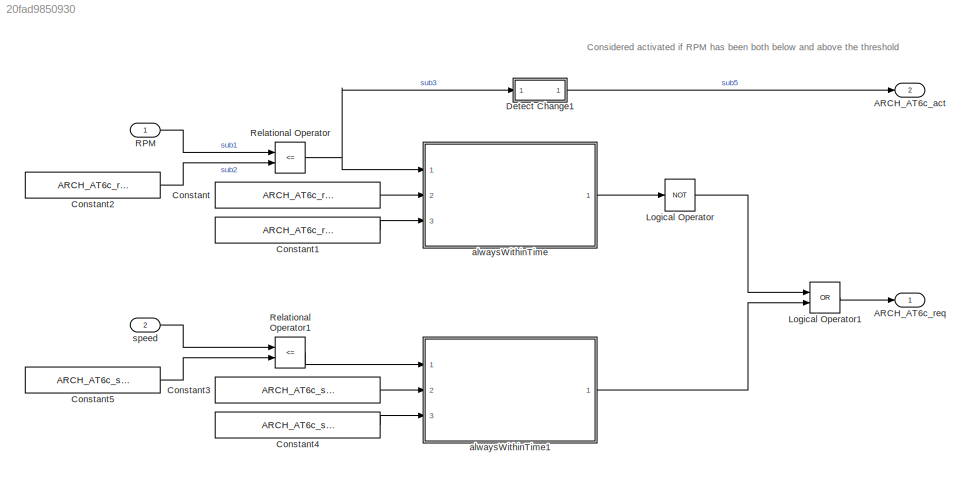
MODEL slx_20fad9850930
KIND model
CONFIG AbsTol = auto
CONFIG EnableMultiTasking = off
CONFIG FixedStep = fixedStepSize
CONFIG MaxStep = auto
CONFIG MinStep = auto
CONFIG RelTol = 1e-3
CONFIG SampleTimeConstraint = Unconstrained
CONFIG Solver = FixedStepAuto
CONFIG SolverName = FixedStepAuto
CONFIG StartTime = 0.0
CONFIG StopTime = 10.0
BLOCK [Outport] ARCH_AT6c_act
  IconDisplay = Port number
  OutDataTypeStr = boolean
  Port = 2
  PortDimensions = 1
  SamplingMode = Sample based
  SignalType = real
  VectorParamsAs1DForOutWhenUnconnected = off
BLOCK [Outport] ARCH_AT6c_req
  IconDisplay = Port number
  OutDataTypeStr = boolean
  PortDimensions = 1
  SamplingMode = Sample based
  SignalType = real
  VectorParamsAs1DForOutWhenUnconnected = off
BLOCK [Constant] Constant
  Value = ARCH_AT6c_rpmStartTime
BLOCK [Constant] Constant1
  Value = ARCH_AT6c_rpmEndTime
BLOCK [Constant] Constant2
  Value = ARCH_AT6c_rpmThreshold
BLOCK [Constant] Constant3
  Value = ARCH_AT6c_speedStartTime
BLOCK [Constant] Constant4
  Value = ARCH_AT6c_speedEndTime
BLOCK [Constant] Constant5
  Value = ARCH_AT6c_speedThreshold
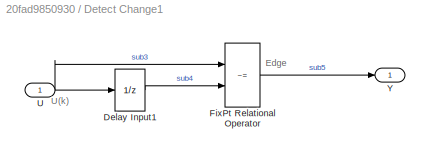
BLOCK [SubSystem] Detect Change1
  Ports = [1, 1]
  RequestExecContextInheritance = off
BLOCK [UnitDelay] Detect Change1/Delay Input1
  Description = Store in Global RAM
  DisableCoverage = on
  HasFrameUpgradeWarning = on
  InitialCondition = vinit
  SampleTime = -1
BLOCK [RelationalOperator] Detect Change1/FixPt Relational Operator
  InputSameDT = off
  Operator = ~=
  OutDataTypeStr = boolean
  Ports = [2, 1]
  ZeroCross = off
BLOCK [Inport] Detect Change1/U
  IconDisplay = Port number
BLOCK [Outport] Detect Change1/Y
  IconDisplay = Port number
  InitialOutput = 0
BLOCK [Logic] Logical Operator
  AllPortsSameDT = off
  Operator = NOT
  OutDataTypeStr = boolean
  Ports = [1, 1]
BLOCK [Logic] Logical Operator1
  AllPortsSameDT = off
  Operator = OR
  OutDataTypeStr = boolean
  Ports = [2, 1]
BLOCK [Inport] RPM
  IconDisplay = Port number
BLOCK [RelationalOperator] Relational Operator
  InputSameDT = off
  Operator = <=
  OutDataTypeStr = boolean
  Ports = [2, 1]
  RndMeth = Simplest
BLOCK [RelationalOperator] Relational Operator1
  InputSameDT = off
  Operator = <=
  OutDataTypeStr = boolean
  Ports = [2, 1]
  RndMeth = Simplest
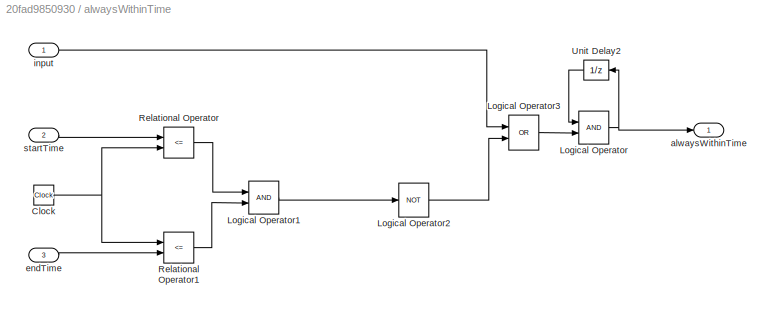
BLOCK [SubSystem] alwaysWithinTime
  CopyFcn = set_param(gcbh,'LinkStatus','none');
  Ports = [3, 1]
  RequestExecContextInheritance = off
BLOCK [Clock] alwaysWithinTime/Clock
BLOCK [Logic] alwaysWithinTime/Logical Operator
  AllPortsSameDT = off
  OutDataTypeStr = boolean
  Ports = [2, 1]
BLOCK [Logic] alwaysWithinTime/Logical Operator1
  AllPortsSameDT = off
  OutDataTypeStr = boolean
  Ports = [2, 1]
BLOCK [Logic] alwaysWithinTime/Logical Operator2
  AllPortsSameDT = off
  Operator = NOT
  OutDataTypeStr = boolean
  Ports = [1, 1]
BLOCK [Logic] alwaysWithinTime/Logical Operator3
  AllPortsSameDT = off
  Operator = OR
  OutDataTypeStr = boolean
  Ports = [2, 1]
BLOCK [RelationalOperator] alwaysWithinTime/Relational Operator
  InputSameDT = off
  Operator = <=
  OutDataTypeStr = boolean
  Ports = [2, 1]
  RndMeth = Simplest
BLOCK [RelationalOperator] alwaysWithinTime/Relational Operator1
  InputSameDT = off
  Operator = <=
  OutDataTypeStr = boolean
  Ports = [2, 1]
  RndMeth = Simplest
BLOCK [UnitDelay] alwaysWithinTime/Unit Delay2
  HasFrameUpgradeWarning = on
  InitialCondition = 1
  SampleTime = -1
BLOCK [Outport] alwaysWithinTime/alwaysWithinTime
  IconDisplay = Port number
  VectorParamsAs1DForOutWhenUnconnected = off
BLOCK [Inport] alwaysWithinTime/endTime
  IconDisplay = Port number
  Port = 3
BLOCK [Inport] alwaysWithinTime/input
  IconDisplay = Port number
BLOCK [Inport] alwaysWithinTime/startTime
  IconDisplay = Port number
  Port = 2
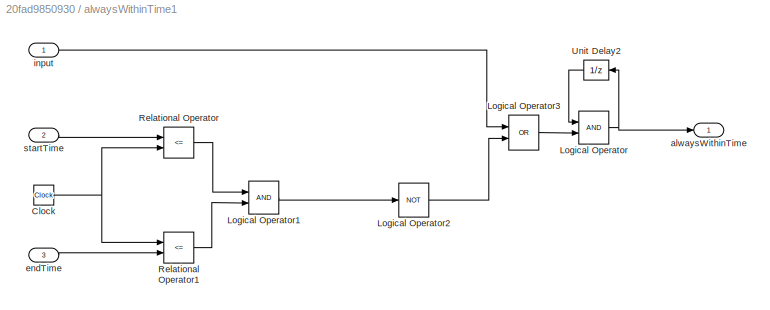
BLOCK [SubSystem] alwaysWithinTime1
  CopyFcn = set_param(gcbh,'LinkStatus','none');
  Ports = [3, 1]
  RequestExecContextInheritance = off
BLOCK [Clock] alwaysWithinTime1/Clock
BLOCK [Logic] alwaysWithinTime1/Logical Operator
  AllPortsSameDT = off
  OutDataTypeStr = boolean
  Ports = [2, 1]
BLOCK [Logic] alwaysWithinTime1/Logical Operator1
  AllPortsSameDT = off
  OutDataTypeStr = boolean
  Ports = [2, 1]
BLOCK [Logic] alwaysWithinTime1/Logical Operator2
  AllPortsSameDT = off
  Operator = NOT
  OutDataTypeStr = boolean
  Ports = [1, 1]
BLOCK [Logic] alwaysWithinTime1/Logical Operator3
  AllPortsSameDT = off
  Operator = OR
  OutDataTypeStr = boolean
  Ports = [2, 1]
BLOCK [RelationalOperator] alwaysWithinTime1/Relational Operator
  InputSameDT = off
  Operator = <=
  OutDataTypeStr = boolean
  Ports = [2, 1]
  RndMeth = Simplest
BLOCK [RelationalOperator] alwaysWithinTime1/Relational Operator1
  InputSameDT = off
  Operator = <=
  OutDataTypeStr = boolean
  Ports = [2, 1]
  RndMeth = Simplest
BLOCK [UnitDelay] alwaysWithinTime1/Unit Delay2
  HasFrameUpgradeWarning = on
  InitialCondition = 1
  SampleTime = -1
BLOCK [Outport] alwaysWithinTime1/alwaysWithinTime
  IconDisplay = Port number
  VectorParamsAs1DForOutWhenUnconnected = off
BLOCK [Inport] alwaysWithinTime1/endTime
  IconDisplay = Port number
  Port = 3
BLOCK [Inport] alwaysWithinTime1/input
  IconDisplay = Port number
BLOCK [Inport] alwaysWithinTime1/startTime
  IconDisplay = Port number
  Port = 2
BLOCK [Inport] speed
  IconDisplay = Port number
  Port = 2
ANNOTATION (root): Considered activated if RPM has been both below and above the threshold
ANNOTATION Detect Change1: Edge
ANNOTATION Detect Change1: U(k)
LINE Constant1:1 -> alwaysWithinTime:3
LINE Constant2:1 -> Relational Operator:2
LINE Constant3:1 -> alwaysWithinTime1:2
LINE Constant4:1 -> alwaysWithinTime1:3
LINE Constant5:1 -> Relational Operator1:2
LINE Constant:1 -> alwaysWithinTime:2
LINE Detect Change1:1 -> ARCH_AT6c_act:1
LINE Logical Operator1:1 -> ARCH_AT6c_req:1
LINE Logical Operator:1 -> Logical Operator1:1
LINE RPM:1 -> Relational Operator:1
LINE Relational Operator1:1 -> alwaysWithinTime1:1
NET Relational Operator:1 -> Detect Change1:1, alwaysWithinTime:1
NET alwaysWithinTime/Clock:1 -> alwaysWithinTime/Relational Operator1:1, alwaysWithinTime/Relational Operator:2
LINE alwaysWithinTime/Logical Operator1:1 -> alwaysWithinTime/Logical Operator2:1
LINE alwaysWithinTime/Logical Operator2:1 -> alwaysWithinTime/Logical Operator3:2
LINE alwaysWithinTime/Logical Operator3:1 -> alwaysWithinTime/Logical Operator:2
NET alwaysWithinTime/Logical Operator:1 -> alwaysWithinTime/Unit Delay2:1, alwaysWithinTime/alwaysWithinTime:1
LINE alwaysWithinTime/Relational Operator1:1 -> alwaysWithinTime/Logical Operator1:2
LINE alwaysWithinTime/Relational Operator:1 -> alwaysWithinTime/Logical Operator1:1
LINE alwaysWithinTime/Unit Delay2:1 -> alwaysWithinTime/Logical Operator:1
LINE alwaysWithinTime/endTime:1 -> alwaysWithinTime/Relational Operator1:2
LINE alwaysWithinTime/input:1 -> alwaysWithinTime/Logical Operator3:1
LINE alwaysWithinTime/startTime:1 -> alwaysWithinTime/Relational Operator:1
NET alwaysWithinTime1/Clock:1 -> alwaysWithinTime1/Relational Operator1:1, alwaysWithinTime1/Relational Operator:2
LINE alwaysWithinTime1/Logical Operator1:1 -> alwaysWithinTime1/Logical Operator2:1
LINE alwaysWithinTime1/Logical Operator2:1 -> alwaysWithinTime1/Logical Operator3:2
LINE alwaysWithinTime1/Logical Operator3:1 -> alwaysWithinTime1/Logical Operator:2
NET alwaysWithinTime1/Logical Operator:1 -> alwaysWithinTime1/Unit Delay2:1, alwaysWithinTime1/alwaysWithinTime:1
LINE alwaysWithinTime1/Relational Operator1:1 -> alwaysWithinTime1/Logical Operator1:2
LINE alwaysWithinTime1/Relational Operator:1 -> alwaysWithinTime1/Logical Operator1:1
LINE alwaysWithinTime1/Unit Delay2:1 -> alwaysWithinTime1/Logical Operator:1
LINE alwaysWithinTime1/endTime:1 -> alwaysWithinTime1/Relational Operator1:2
LINE alwaysWithinTime1/input:1 -> alwaysWithinTime1/Logical Operator3:1
LINE alwaysWithinTime1/startTime:1 -> alwaysWithinTime1/Relational Operator:1
LINE alwaysWithinTime1:1 -> Logical Operator1:2
LINE alwaysWithinTime:1 -> Logical Operator:1
LINE speed:1 -> Relational Operator1:1
note: NET lines group one-source signal fan-out (src -> all destinations, sorted); 1:1 wires keep LINE
